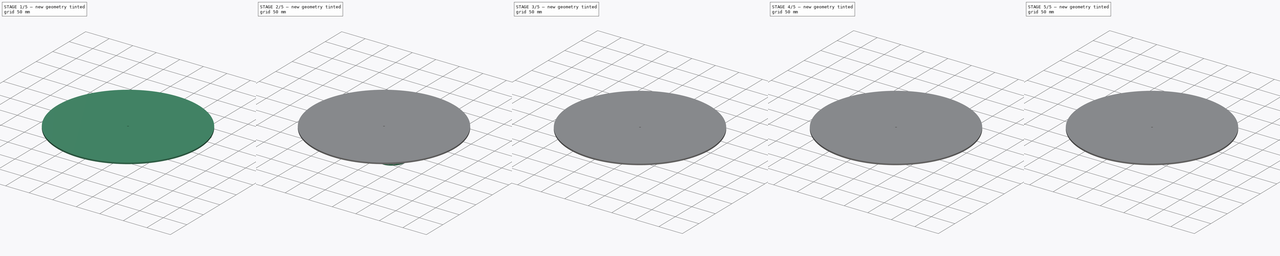
[diagram: build sequence overview — one tinted view per stage of 5, left to right]
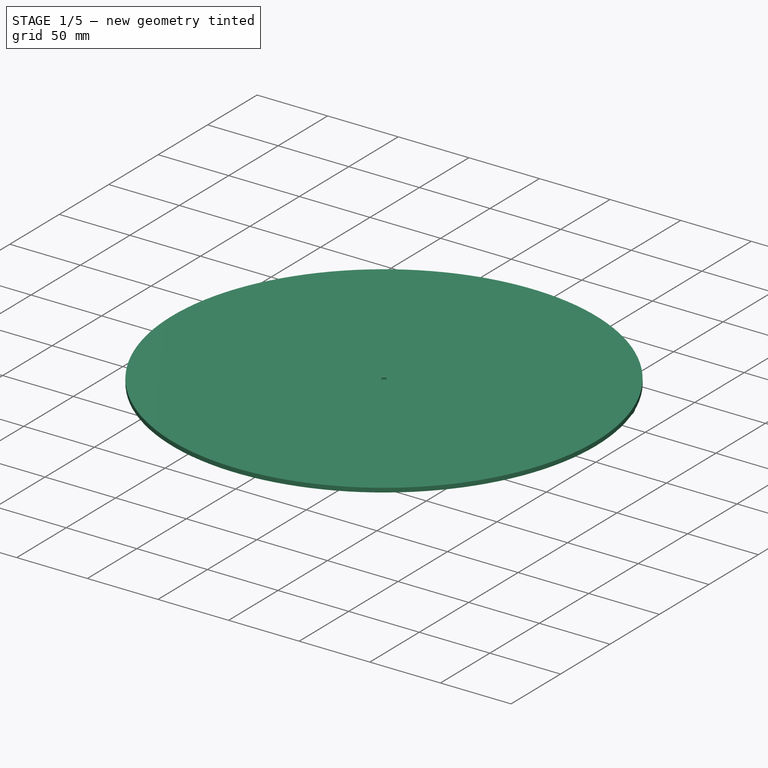
[diagram: stage 1 of 5 — iso view after this stage's code; geometry added in this stage tinted green]
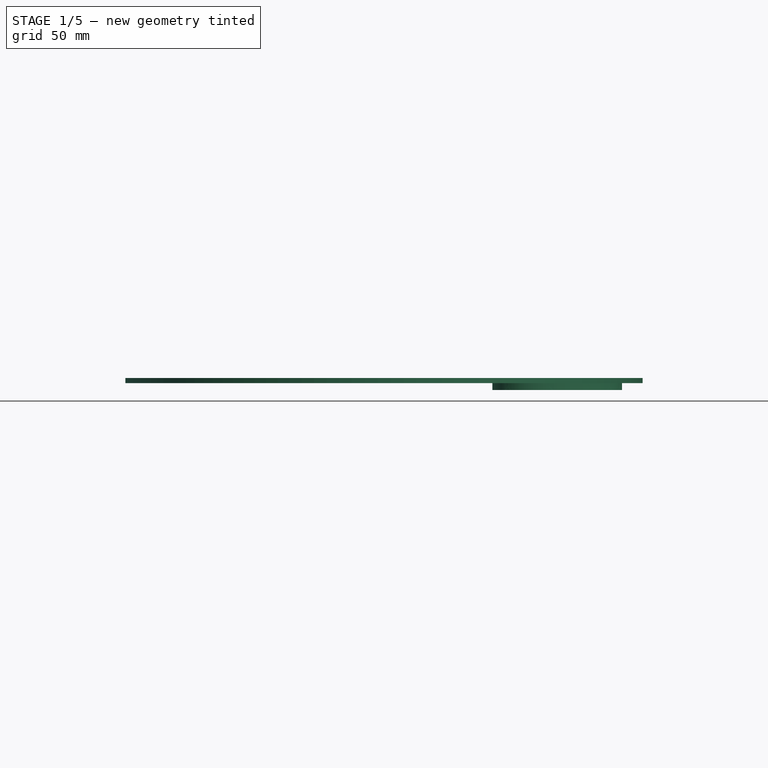
[diagram: stage 1 of 5 — front view after this stage's code; geometry added in this stage tinted green]
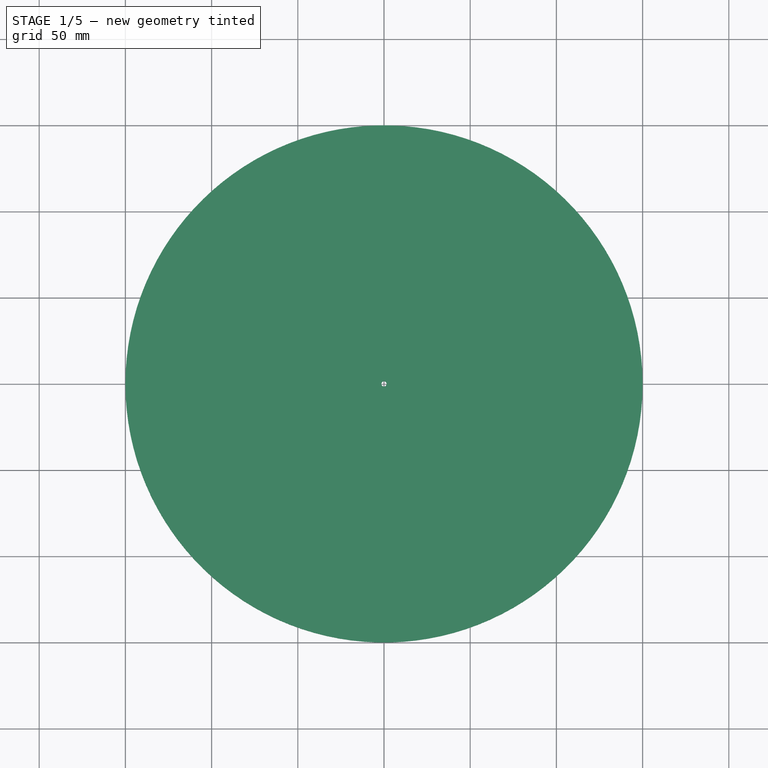
[diagram: stage 1 of 5 — top view after this stage's code; geometry added in this stage tinted green]
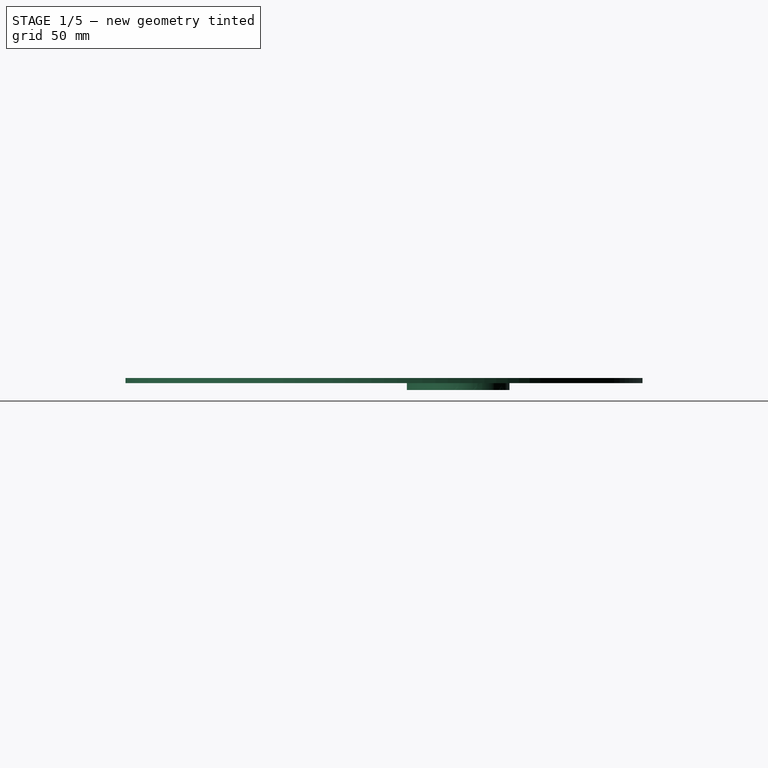
[diagram: stage 1 of 5 — right view after this stage's code; geometry added in this stage tinted green]
FCSTD DOCUMENT  (FreeCAD 0.19R23756 (Git))
Label: TT-counter
License: All rights reserved
LicenseURL: http://en.wikipedia.org/wiki/All_rights_reserved
objects: Part::Part2DObjectPython×11, Part::Extrusion×10, Part::Cut×10, Spreadsheet::Sheet×1, Sketcher::SketchObject×1, PartDesign::Pad×1, PartDesign::Body×1, App::DocumentObjectGroup×1, Part::Feature×1
note: 36 computed .brp shape members not serialized (recipe doc carries the construction recipe); baked Part::Feature solids carry a one-line shape summary decoded from their .brp

FEATURE [Spreadsheet::Sheet] Spreadsheet
  cells = A1=MaterialDicke; B1(MaterialDicke)=3
FEATURE [Sketcher::SketchObject] Sketch
  FullyConstrained = true
  MapMode = 5
  Support = -> [XY_Plane]
  sketch-geometry (2):
    g0: Circle CenterX=0 CenterY=0 CenterZ=0 NormalX=0 NormalY=0 NormalZ=1 AngleXU=0 Radius=1.5
    g1: Circle CenterX=0 CenterY=0 CenterZ=0 NormalX=0 NormalY=0 NormalZ=1 AngleXU=0 Radius=150
  constraints (4):
    c: Radius(g0) = 1.5
    c: Coincident(g1,g0)
    c: Radius(g1) = 150
    c: Coincident(g0,g-1)
FEATURE [PartDesign::Pad] Pad
  Direction = (1,1,1)
  Length = 3
  Length2 = 100
  Profile = -> Sketch
  Type = 0
  expr: Length = Spreadsheet.MaterialDicke
FEATURE [PartDesign::Body] Body
  Group = -> [Sketch,Pad]
  Origin = -> Origin
  Placement = pos=(0,0,-1) rot=(0,0,1;0rad)
  Tip = -> Pad
FEATURE [Part::Part2DObjectPython] ShapeString  label="0"  # Draft 2D object (typed FeaturePython)
  FontFile = <path>
  Size = 40
  String = 0
  Tracking = 0
FEATURE [Part::Extrusion] Extrusion  label="0001"
  Base = -> ShapeString
  Dir = (0,0,5)
  DirMode = 0
  FaceMakerClass = Part::FaceMakerBullseye
  LengthFwd = 0
  LengthRev = 0
  Placement = pos=(80,0,0) rot=(0.5373,0.843391,0;3.14159rad)
  Solid = false
  Symmetric = false
FEATURE [Part::Part2DObjectPython] ShapeString001  label="1"  # Draft 2D object (typed FeaturePython)
  FontFile = <path>
  Size = 40
  String = 1
  Tracking = 0
FEATURE [Part::Extrusion] Extrusion001  label="1001"
  Base = -> ShapeString001
  Dir = (0,0,5)
  DirMode = 0
  FaceMakerClass = Part::FaceMakerBullseye
  LengthFwd = 0
  LengthRev = 0
  Placement = pos=(64.7214,47.0228,0) rot=(0.25038,0.968148,0;3.14159rad)
  Solid = false
  Symmetric = false
FEATURE [Part::Cut] Cut
  Base = -> Body
  Tool = -> Extrusion001
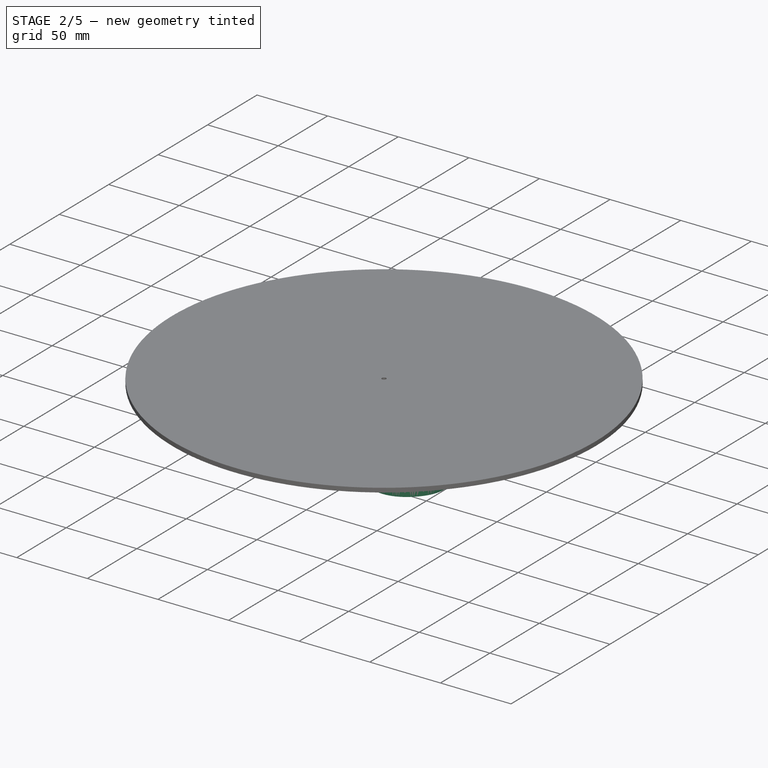
[diagram: stage 2 of 5 — iso view after this stage's code; geometry added in this stage tinted green]
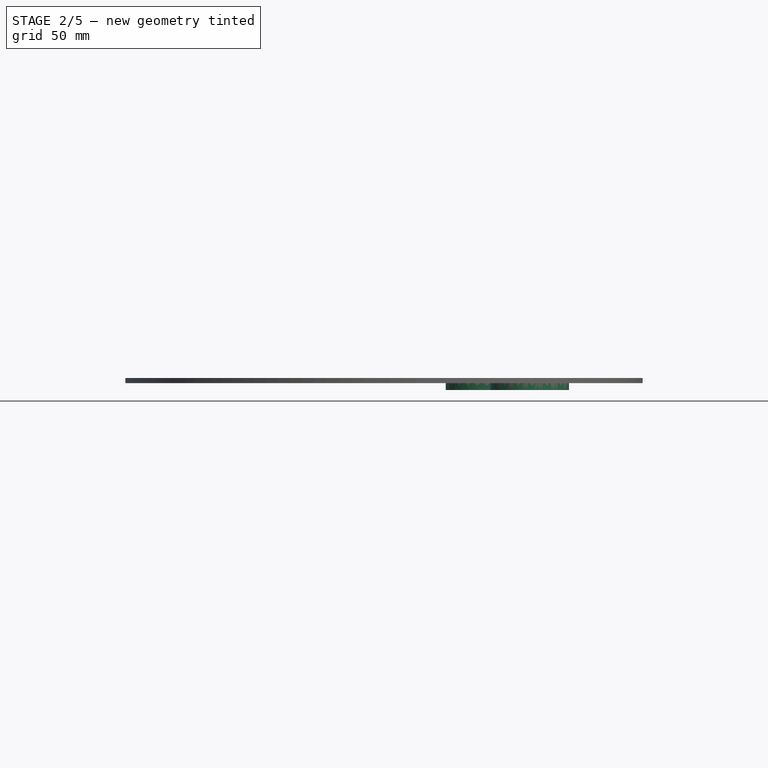
[diagram: stage 2 of 5 — front view after this stage's code; geometry added in this stage tinted green]
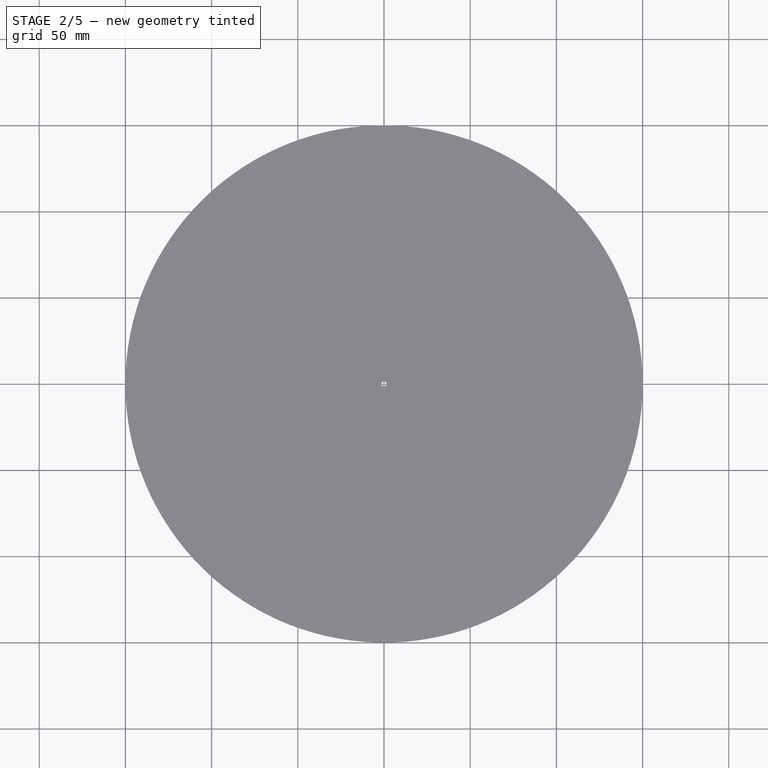
[diagram: stage 2 of 5 — top view after this stage's code; geometry added in this stage tinted green]
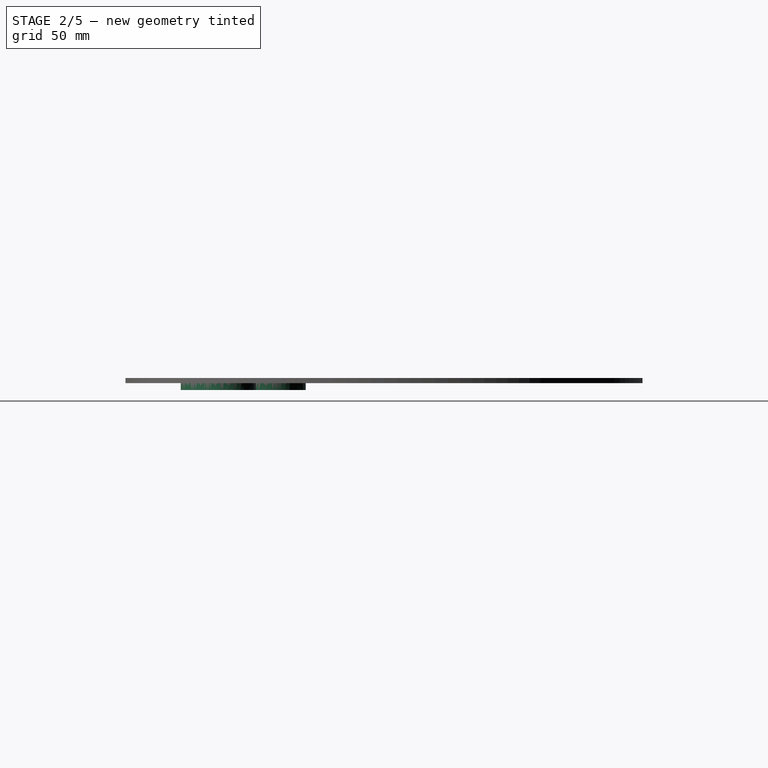
[diagram: stage 2 of 5 — right view after this stage's code; geometry added in this stage tinted green]
FEATURE [Part::Part2DObjectPython] ShapeString008  label="8"  # Draft 2D object (typed FeaturePython)
  FontFile = <path>
  Size = 40
  String = 8
  Tracking = 0
FEATURE [Part::Extrusion] Extrusion008  label="8001"
  Base = -> ShapeString008
  Dir = (0,0,5)
  DirMode = 0
  FaceMakerClass = Part::FaceMakerBullseye
  LengthFwd = 0
  LengthRev = 0
  Placement = pos=(24.7214,-76.0845,0) rot=(-0.930418,-0.366501,0;3.14159rad)
  Solid = false
  Symmetric = false
FEATURE [Part::Part2DObjectPython] ShapeString009  label="9"  # Draft 2D object (typed FeaturePython)
  FontFile = <path>
  Size = 40
  String = 9
  Tracking = 0
FEATURE [Part::Extrusion] Extrusion009  label="9001"
  Base = -> ShapeString009
  Dir = (0,0,5)
  DirMode = 0
  FaceMakerClass = Part::FaceMakerBullseye
  LengthFwd = 0
  LengthRev = 0
  Placement = pos=(64.7214,-47.0228,0) rot=(-0.771625,-0.636078,0;3.14159rad)
  Solid = false
  Symmetric = false
FEATURE [Part::Cut] Cut001
  Base = -> Cut
  Tool = -> Extrusion
FEATURE [Part::Cut] Cut002
  Base = -> Cut001
  Tool = -> Extrusion009
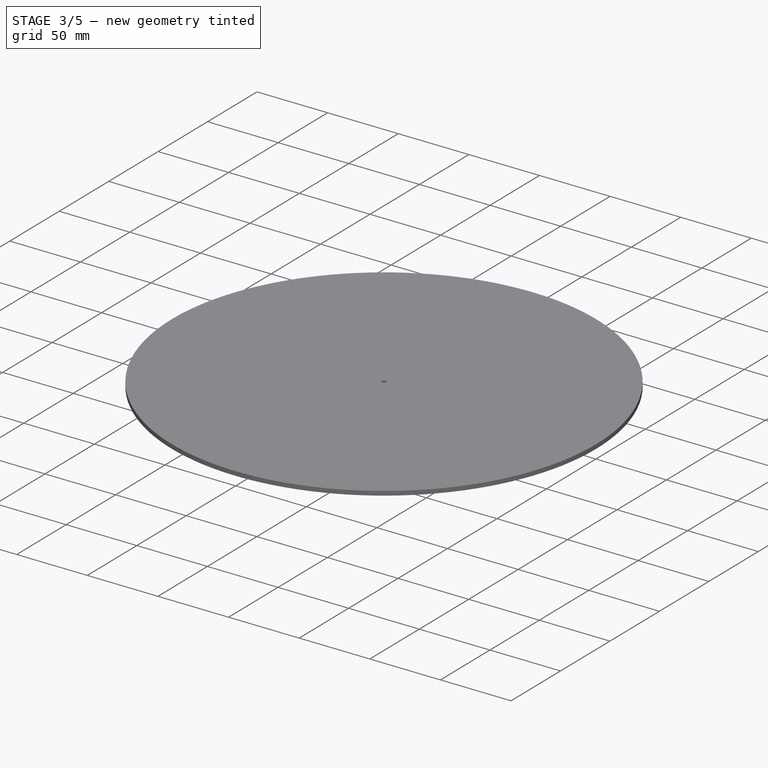
[diagram: stage 3 of 5 — iso view after this stage's code; geometry added in this stage tinted green]
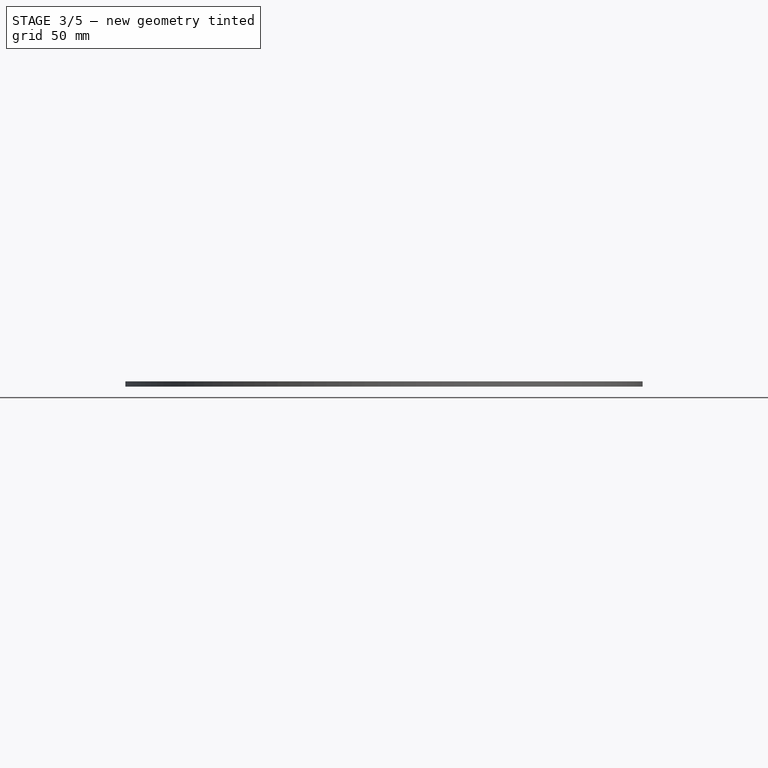
[diagram: stage 3 of 5 — front view after this stage's code; geometry added in this stage tinted green]
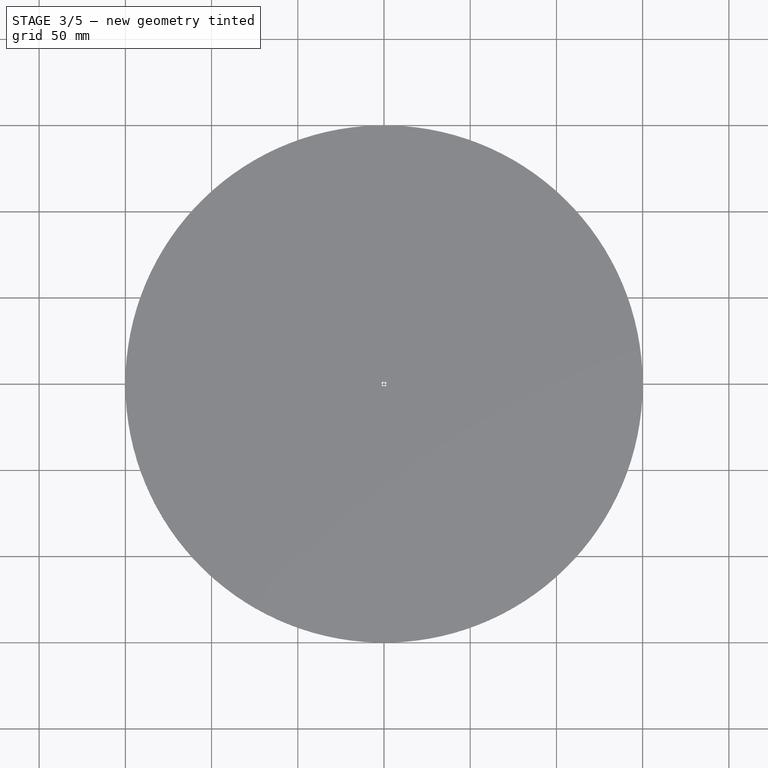
[diagram: stage 3 of 5 — top view after this stage's code; geometry added in this stage tinted green]
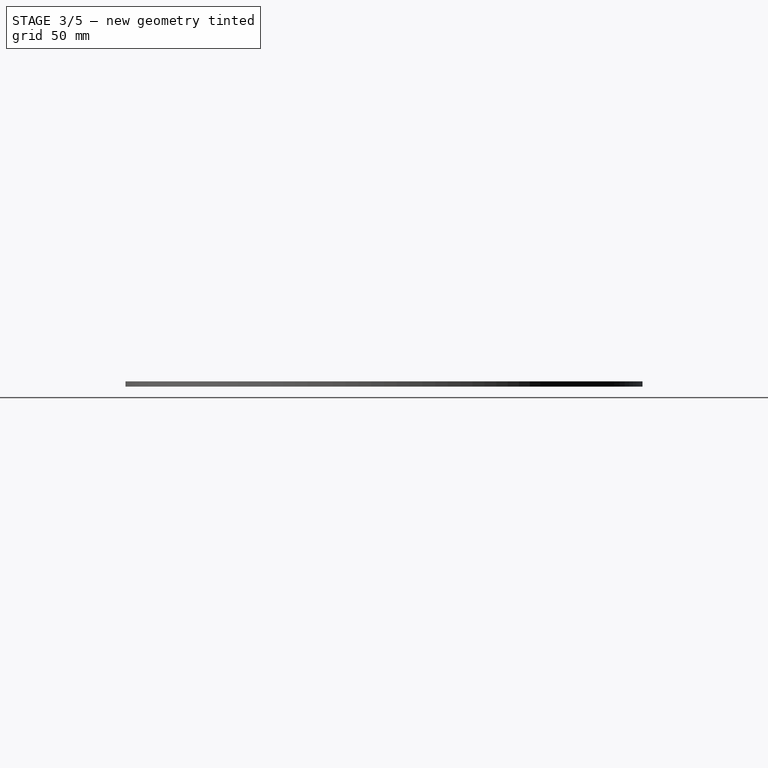
[diagram: stage 3 of 5 — right view after this stage's code; geometry added in this stage tinted green]
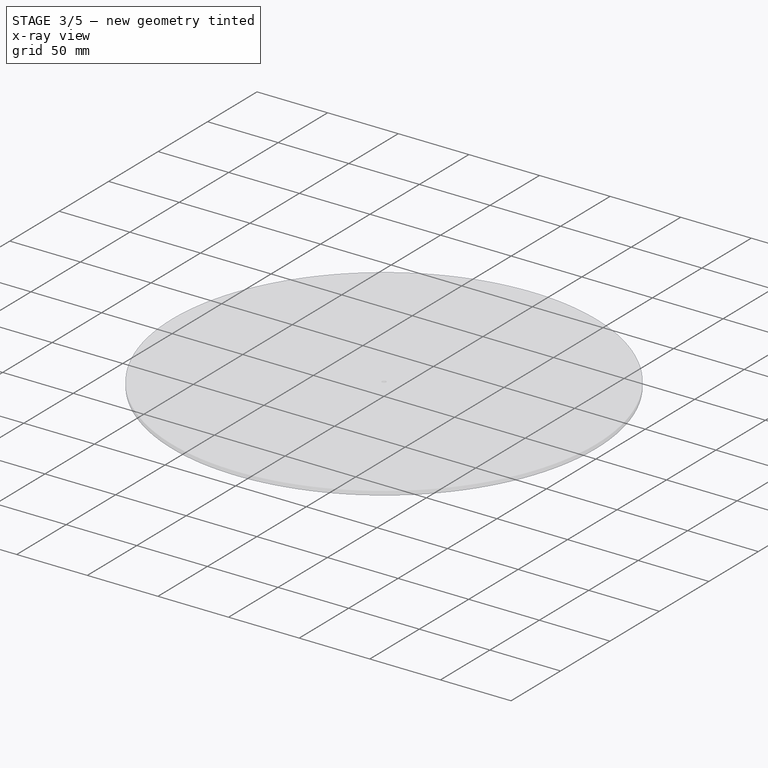
[diagram: stage 3 of 5 — x-ray composite at the iso view; earlier geometry ghosted, this stage's added geometry solid]
FEATURE [Part::Part2DObjectPython] ShapeString006  label="6"  # Draft 2D object (typed FeaturePython)
  FontFile = <path>
  Size = 40
  String = 6
  Tracking = 0
FEATURE [Part::Extrusion] Extrusion006  label="6001"
  Base = -> ShapeString006
  Dir = (0,0,5)
  DirMode = 0
  FaceMakerClass = Part::FaceMakerBullseye
  LengthFwd = 0
  LengthRev = 0
  Placement = pos=(-64.7214,-47.0228,0) rot=(-0.968148,0.25038,0;3.14159rad)
  Solid = false
  Symmetric = false
FEATURE [Part::Part2DObjectPython] ShapeString007  label="7"  # Draft 2D object (typed FeaturePython)
  FontFile = <path>
  Size = 40
  String = 7
  Tracking = 0
FEATURE [Part::Extrusion] Extrusion007  label="7001"
  Base = -> ShapeString007
  Dir = (0,0,5)
  DirMode = 0
  FaceMakerClass = Part::FaceMakerBullseye
  LengthFwd = 0
  LengthRev = 0
  Placement = pos=(-24.7214,-76.0845,0) rot=(-0.998135,-0.061049,0;3.14159rad)
  Solid = false
  Symmetric = false
FEATURE [Part::Cut] Cut003
  Base = -> Cut002
  Tool = -> Extrusion008
FEATURE [Part::Cut] Cut004
  Base = -> Cut003
  Tool = -> Extrusion007
FEATURE [Part::Cut] Cut005
  Base = -> Cut004
  Tool = -> Extrusion006
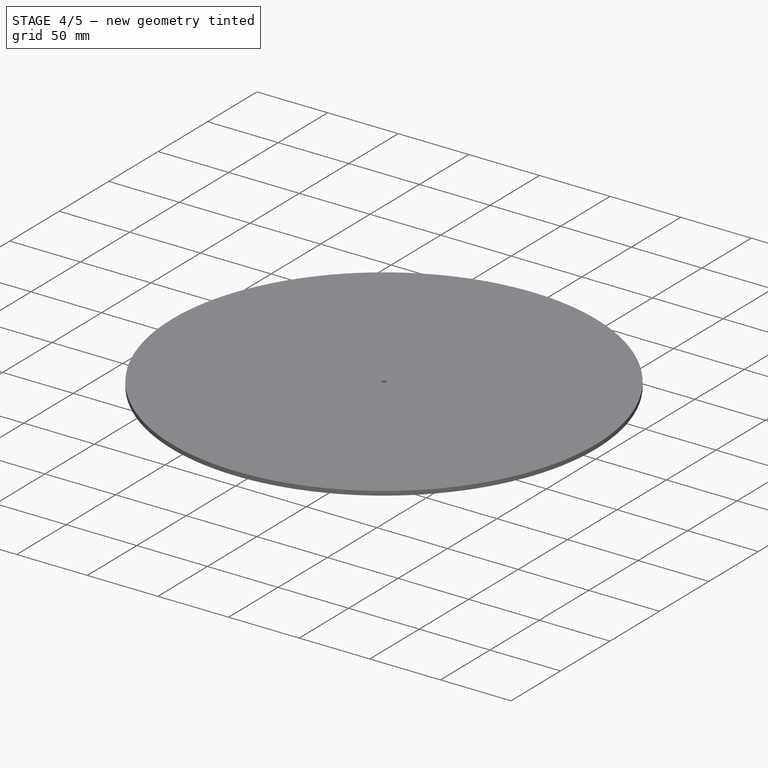
[diagram: stage 4 of 5 — iso view after this stage's code; geometry added in this stage tinted green]
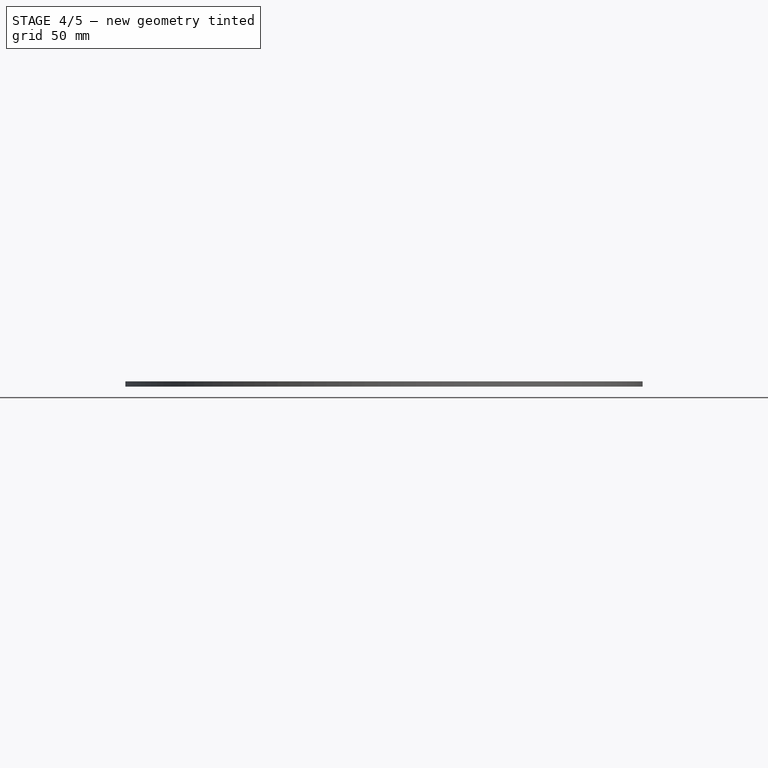
[diagram: stage 4 of 5 — front view after this stage's code; geometry added in this stage tinted green]
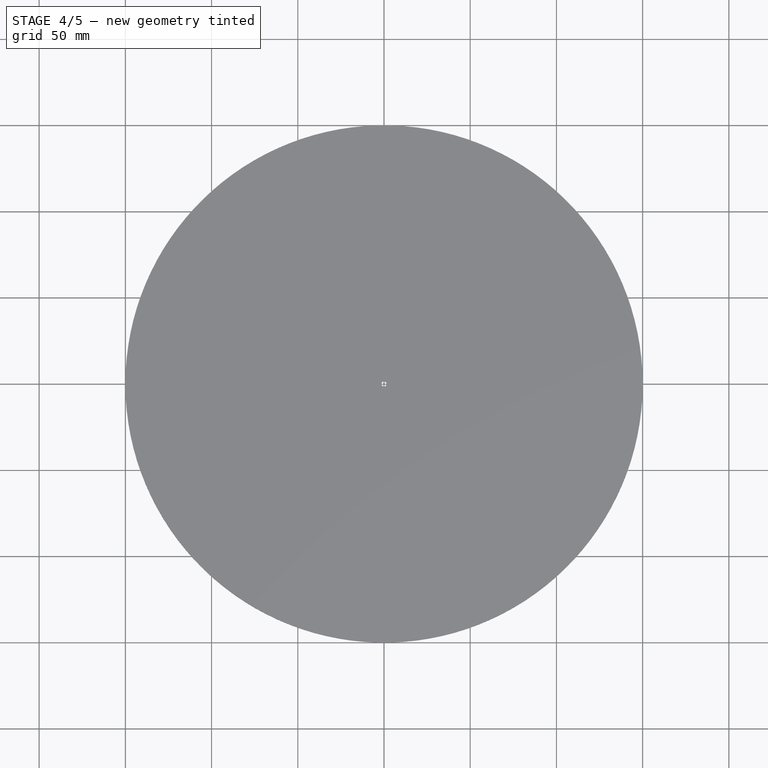
[diagram: stage 4 of 5 — top view after this stage's code; geometry added in this stage tinted green]
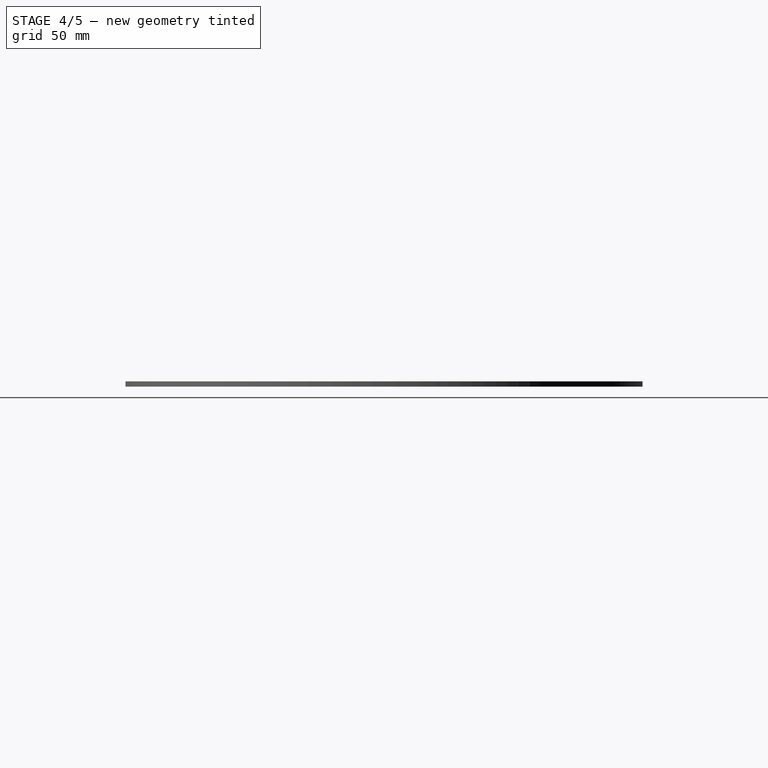
[diagram: stage 4 of 5 — right view after this stage's code; geometry added in this stage tinted green]
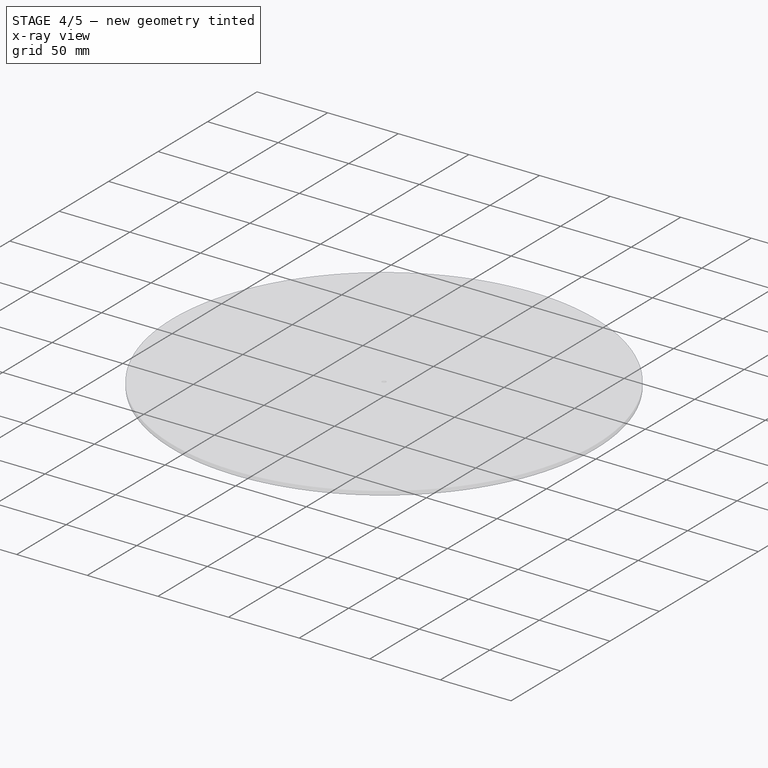
[diagram: stage 4 of 5 — x-ray composite at the iso view; earlier geometry ghosted, this stage's added geometry solid]
FEATURE [Part::Part2DObjectPython] ShapeString004  label="4"  # Draft 2D object (typed FeaturePython)
  FontFile = <path>
  Size = 40
  String = 4
  Tracking = 0
FEATURE [Part::Extrusion] Extrusion004  label="4001"
  Base = -> ShapeString004
  Dir = (0,0,5)
  DirMode = 0
  FaceMakerClass = Part::FaceMakerBullseye
  LengthFwd = 0
  LengthRev = 0
  Placement = pos=(-64.7214,47.0228,0) rot=(-0.636078,0.771625,0;3.14159rad)
  Solid = false
  Symmetric = false
FEATURE [Part::Part2DObjectPython] ShapeString005  label="5"  # Draft 2D object (typed FeaturePython)
  FontFile = <path>
  Size = 40
  String = 5
  Tracking = 0
FEATURE [Part::Extrusion] Extrusion005  label="5001"
  Base = -> ShapeString005
  Dir = (0,0,5)
  DirMode = 0
  FaceMakerClass = Part::FaceMakerBullseye
  LengthFwd = 0
  LengthRev = 0
  Placement = pos=(-80,2.7e-15,0) rot=(-0.843391,0.5373,0;3.14159rad)
  Solid = false
  Symmetric = false
FEATURE [Part::Cut] Cut006
  Base = -> Cut005
  Tool = -> Extrusion005
FEATURE [Part::Cut] Cut007
  Base = -> Cut006
  Tool = -> Extrusion004
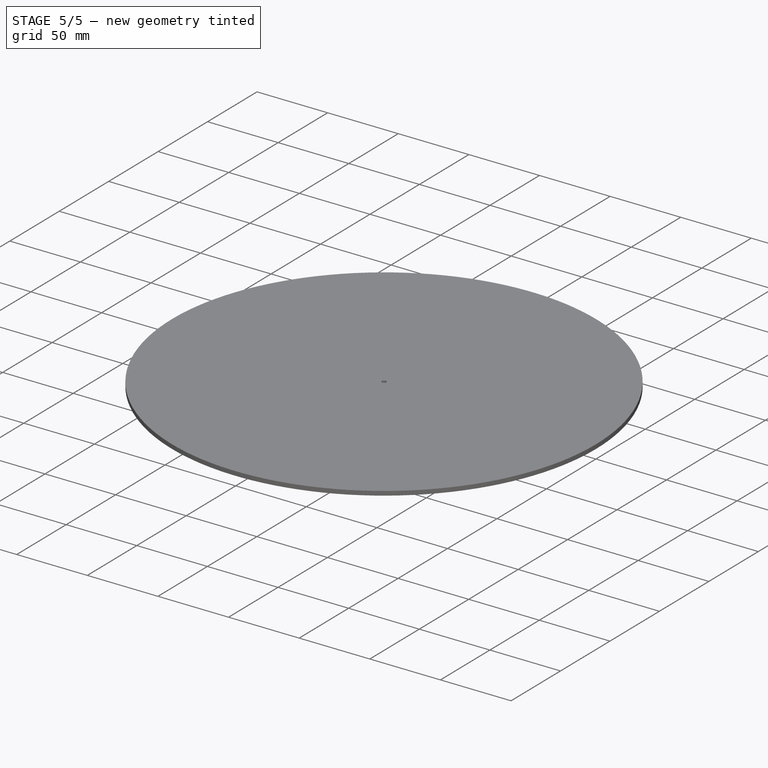
[diagram: stage 5 of 5 — iso view after this stage's code; geometry added in this stage tinted green]
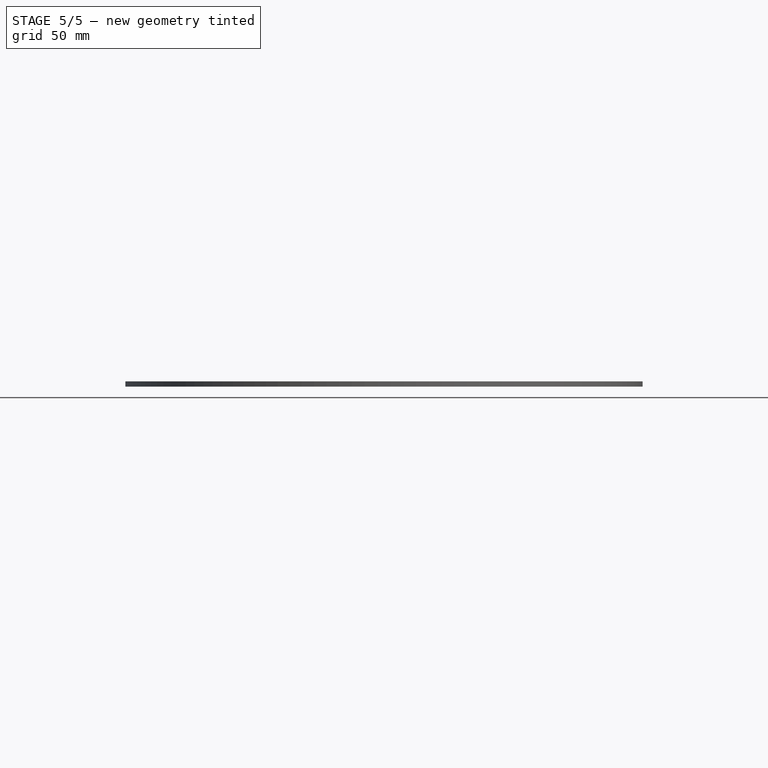
[diagram: stage 5 of 5 — front view after this stage's code; geometry added in this stage tinted green]
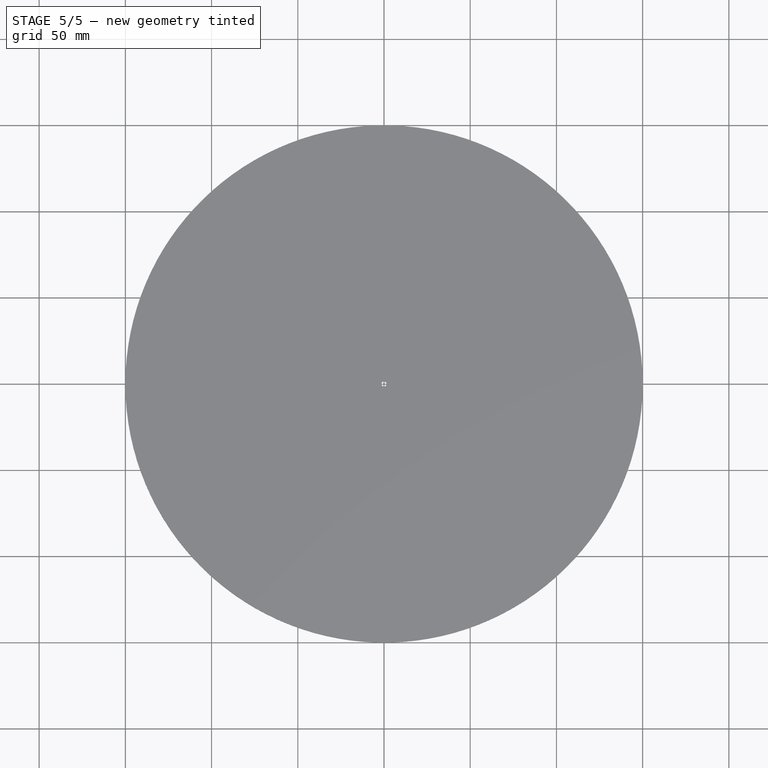
[diagram: stage 5 of 5 — top view after this stage's code; geometry added in this stage tinted green]
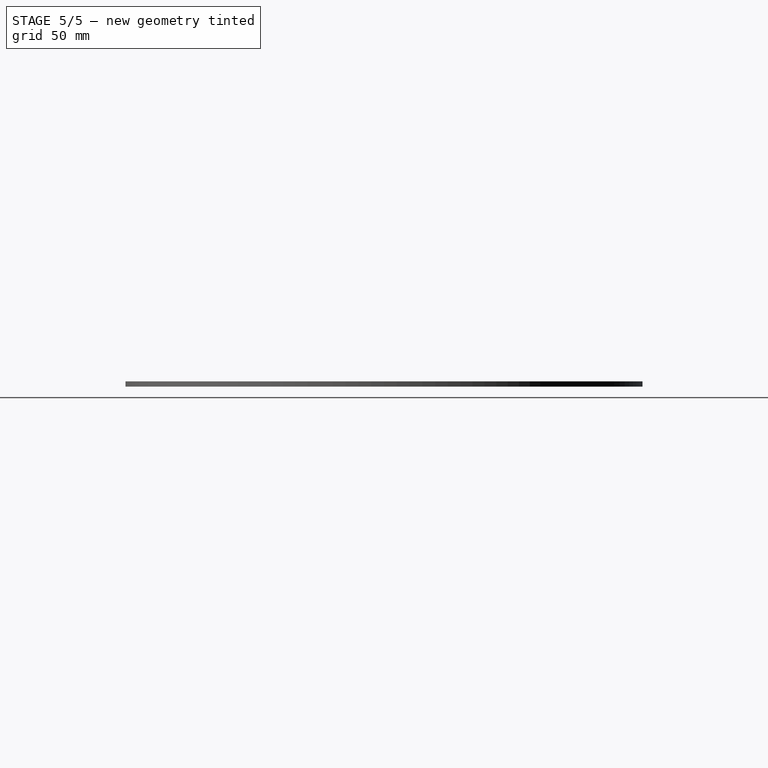
[diagram: stage 5 of 5 — right view after this stage's code; geometry added in this stage tinted green]
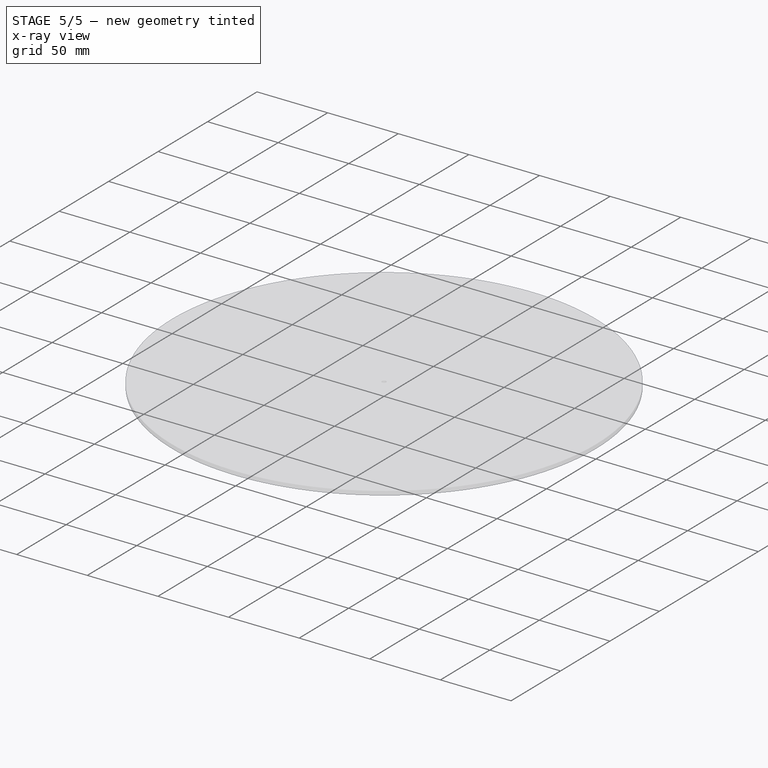
[diagram: stage 5 of 5 — x-ray composite at the iso view; earlier geometry ghosted, this stage's added geometry solid]
FEATURE [Part::Part2DObjectPython] ShapeString002  label="2"  # Draft 2D object (typed FeaturePython)
  FontFile = <path>
  Size = 40
  String = 2
  Tracking = 0
FEATURE [Part::Extrusion] Extrusion002  label="2001"
  Base = -> ShapeString002
  Dir = (0,0,5)
  DirMode = 0
  FaceMakerClass = Part::FaceMakerBullseye
  LengthFwd = 0
  LengthRev = 0
  Placement = pos=(24.7214,76.0845,0) rot=(-0.061049,0.998135,0;3.14159rad)
  Solid = false
  Symmetric = false
FEATURE [Part::Part2DObjectPython] ShapeString003  label="3"  # Draft 2D object (typed FeaturePython)
  FontFile = <path>
  Size = 40
  String = 3
  Tracking = 0
FEATURE [Part::Extrusion] Extrusion003  label="3001"
  Base = -> ShapeString003
  Dir = (0,0,5)
  DirMode = 0
  FaceMakerClass = Part::FaceMakerBullseye
  LengthFwd = 0
  LengthRev = 0
  Placement = pos=(-24.7214,76.0845,0) rot=(-0.366501,0.930418,0;3.14159rad)
  Solid = false
  Symmetric = false
FEATURE [Part::Cut] Cut008
  Base = -> Cut007
  Tool = -> Extrusion003
FEATURE [Part::Cut] Cut009
  Base = -> Cut008
  Tool = -> Extrusion002
FEATURE [App::DocumentObjectGroup] FcString_0123456789
  Group = -> [ShapeString,ShapeString001,ShapeString002,ShapeString003,ShapeString004,ShapeString005,ShapeString006,ShapeString007,ShapeString008,ShapeString009,Cut009]
FEATURE [Part::Feature] Cut009001
  shape: bbox 300 x 300 x 3 mm, 312 faces (baked)
FEATURE [Part::Part2DObjectPython] Shape2DView  # Draft 2D object (typed FeaturePython)
  Base = -> Cut009001
  FuseArch = false
  HiddenLines = false
  InPlace = true
  Projection = (0,0,-0.96)
  ProjectionMode = 0
  SegmentLength = 0.05
  Tessellation = false
  VisibleOnly = false
note: 10 file-system paths scrubbed to <path> (originals preserved in the JSON sidecar)
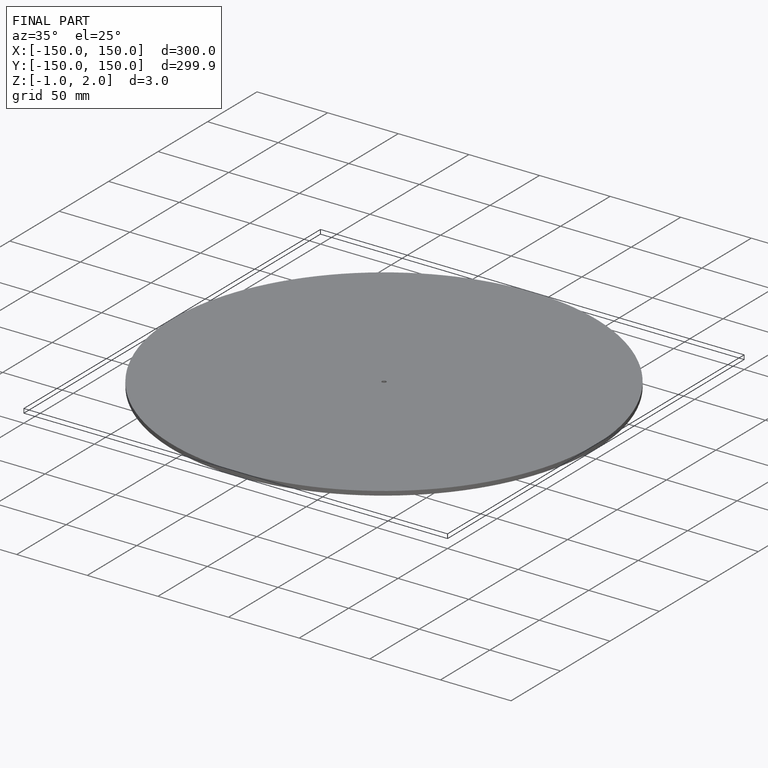
[diagram: finished part — iso view with bounding-box wireframe]
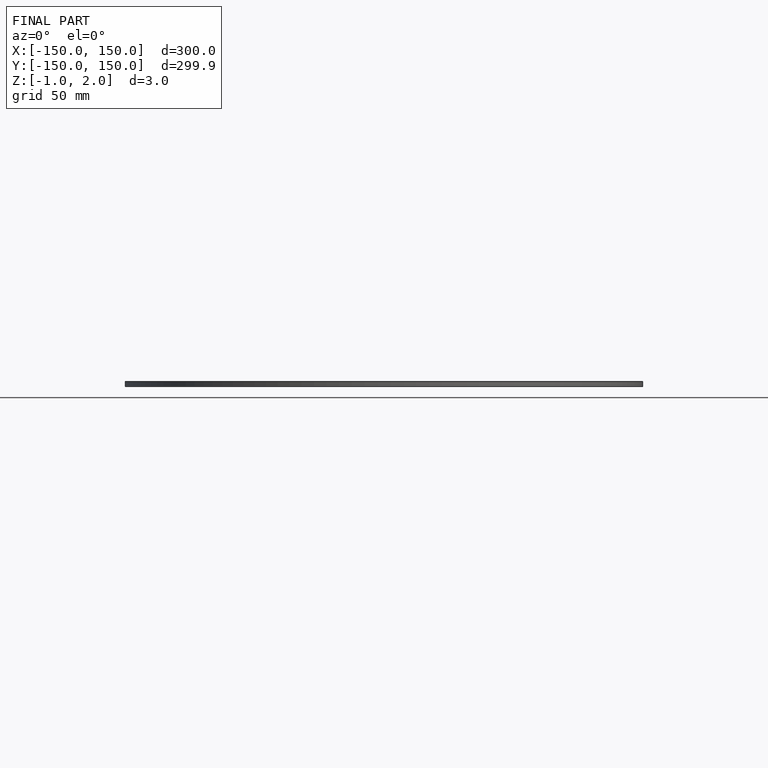
[diagram: finished part — front view with bounding-box wireframe]
